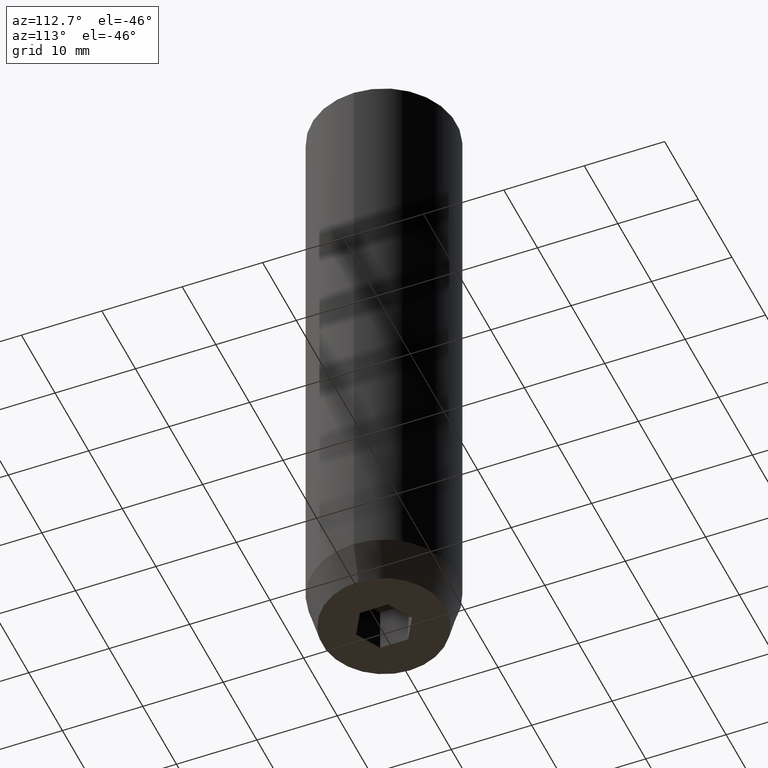
[diagram: clean part render]
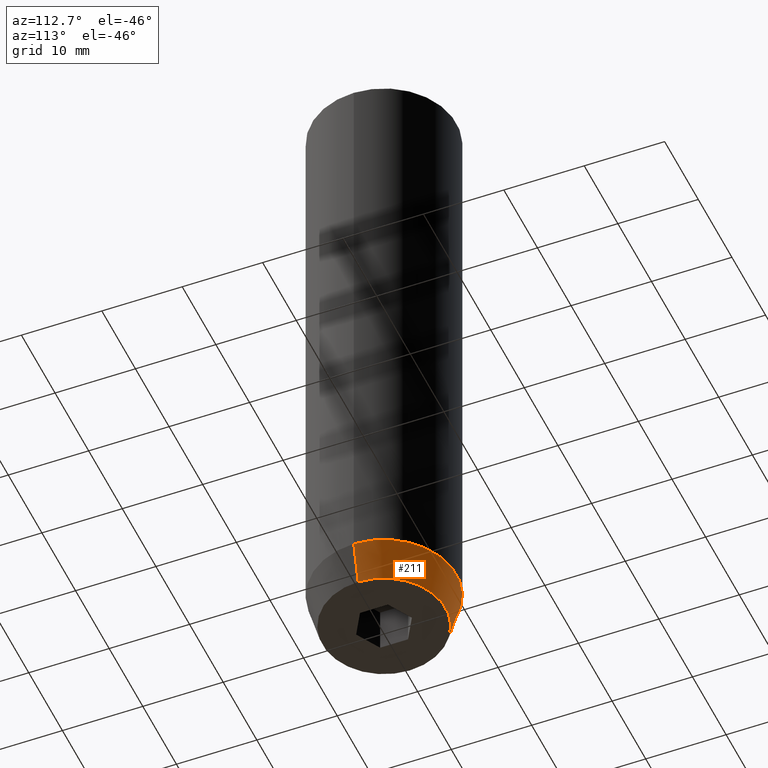
[diagram: same view with one face highlighted and labeled with its STEP entity id]
A machine part, auxiliary view. The second image highlights one B-rep face of the part: STEP entity #211.
In plain terms, the highlighted conical surface has half-angle 15 deg.
Its self-contained STEP definition (entity closure, byte-faithful):
#7 = EDGE_CURVE ( 'NONE', #435, #127, #298, .T. ) ;
#10 = CIRCLE ( 'NONE', #623, 9.000000000000000000 ) ;
#13 = DIRECTION ( 'NONE',  ( 1.000000000000000000, 0.000000000000000000, 0.000000000000000000 ) ) ;
#18 = EDGE_CURVE ( 'NONE', #381, #92, #402, .T. ) ;
#28 = ORIENTED_EDGE ( 'NONE', *, *, #18, .T. ) ;
#46 = DIRECTION ( 'NONE',  ( 0.2588190451025211836, 0.000000000000000000, 0.9659258262890680902 ) ) ;
#62 = FACE_OUTER_BOUND ( 'NONE', #397, .T. ) ;
#67 = DIRECTION ( 'NONE',  ( 1.000000000000000000, 0.000000000000000000, 0.000000000000000000 ) ) ;
#82 = DIRECTION ( 'NONE',  ( 1.000000000000000000, 0.000000000000000000, 0.000000000000000000 ) ) ;
#86 = CARTESIAN_POINT ( 'NONE',  ( 0.000000000000000000, 0.000000000000000000, -80.00000000000000000 ) ) ;
#92 = VERTEX_POINT ( 'NONE', #393 ) ;
#94 = CARTESIAN_POINT ( 'NONE',  ( -7.660254037844381969, 1.020146339021394469E-15, -80.00000000000000000 ) ) ;
#113 = CARTESIAN_POINT ( 'NONE',  ( 9.000000000000000000, 0.000000000000000000, -75.00000000000000000 ) ) ;
#118 = ORIENTED_EDGE ( 'NONE', *, *, #7, .F. ) ;
#123 = VECTOR ( 'NONE', #46, 1000.000000000000114 ) ;
#124 = CONICAL_SURFACE ( 'NONE', #239, 9.000000000000000000, 0.2617993877991499074 ) ;
#127 = VERTEX_POINT ( 'NONE', #113 ) ;
#211 = ADVANCED_FACE ( 'NONE', ( #62 ), #124, .T. ) ;
#239 = AXIS2_PLACEMENT_3D ( 'NONE', #264, #605, #67 ) ;
#253 = DIRECTION ( 'NONE',  ( -0.2588190451025211836, 3.169619151431770488E-17, 0.9659258262890680902 ) ) ;
#264 = CARTESIAN_POINT ( 'NONE',  ( 0.000000000000000000, 0.000000000000000000, -75.00000000000000000 ) ) ;
#287 = VECTOR ( 'NONE', #253, 1000.000000000000114 ) ;
#298 = LINE ( 'NONE', #586, #123 ) ;
#309 = AXIS2_PLACEMENT_3D ( 'NONE', #86, #463, #13 ) ;
#336 = ORIENTED_EDGE ( 'NONE', *, *, #601, .F. ) ;
#381 = VERTEX_POINT ( 'NONE', #94 ) ;
#393 = CARTESIAN_POINT ( 'NONE',  ( -9.000000000000000000, 1.102182119232617714E-15, -75.00000000000000000 ) ) ;
#397 = EDGE_LOOP ( 'NONE', ( #431, #28, #336, #118 ) ) ;
#402 = LINE ( 'NONE', #499, #287 ) ;
#431 = ORIENTED_EDGE ( 'NONE', *, *, #598, .T. ) ;
#435 = VERTEX_POINT ( 'NONE', #529 ) ;
#463 = DIRECTION ( 'NONE',  ( -0.000000000000000000, -0.000000000000000000, 1.000000000000000000 ) ) ;
#499 = CARTESIAN_POINT ( 'NONE',  ( -9.000000000000000000, 1.102182119232617714E-15, -75.00000000000000000 ) ) ;
#529 = CARTESIAN_POINT ( 'NONE',  ( 7.660254037844381969, 0.000000000000000000, -80.00000000000000000 ) ) ;
#556 = DIRECTION ( 'NONE',  ( -0.000000000000000000, -0.000000000000000000, 1.000000000000000000 ) ) ;
#569 = CARTESIAN_POINT ( 'NONE',  ( 0.000000000000000000, 0.000000000000000000, -75.00000000000000000 ) ) ;
#586 = CARTESIAN_POINT ( 'NONE',  ( 9.000000000000000000, 0.000000000000000000, -75.00000000000000000 ) ) ;
#598 = EDGE_CURVE ( 'NONE', #435, #381, #637, .T. ) ;
#601 = EDGE_CURVE ( 'NONE', #127, #92, #10, .T. ) ;
#605 = DIRECTION ( 'NONE',  ( -0.000000000000000000, -0.000000000000000000, 1.000000000000000000 ) ) ;
#623 = AXIS2_PLACEMENT_3D ( 'NONE', #569, #556, #82 ) ;
#637 = CIRCLE ( 'NONE', #309, 7.660254037844381969 ) ;